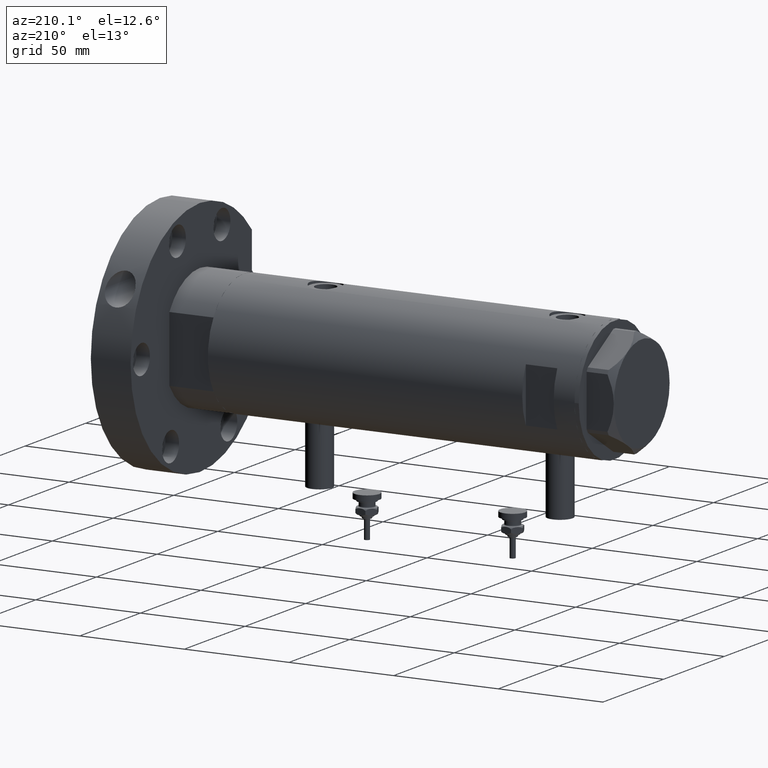
[diagram: clean part render]
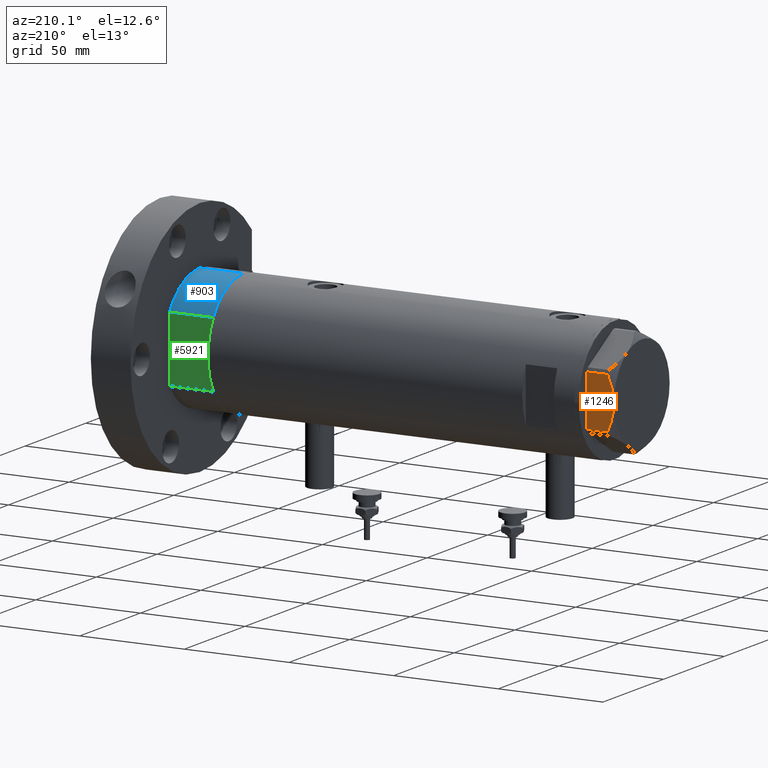
[diagram: same view with three faces highlighted in distinct colors, each labeled with its STEP entity id]
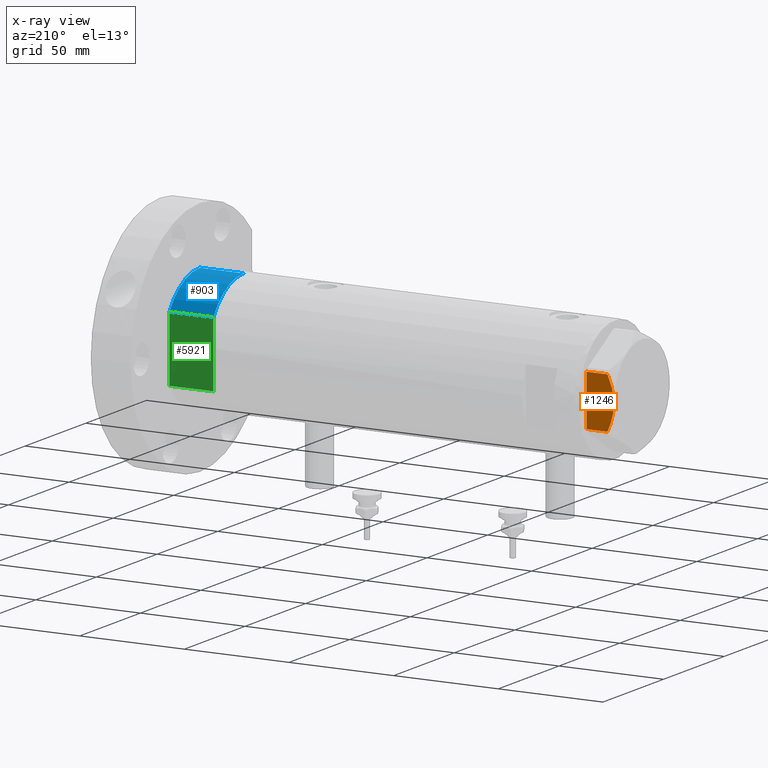
[diagram: x-ray of the same camera — body ghosted, the three highlighted faces saturated]
A machine part, auxiliary view with three faces highlighted in distinct colors.
The next image is the same camera in x-ray (body ghosted, the three faces saturated) — at least one of them is partly hidden behind the body in this view.
Their STEP definitions:

[orange] entity #1246 — the highlighted planar face has unit normal (0, -1, 0).
#116 = ORIENTED_EDGE ( 'NONE', *, *, #1996, .F. ) ;
#187 = DIRECTION ( 'NONE',  ( -1.032024811306395780E-14, 1.000000000000000000, 0.000000000000000000 ) ) ;
#456 = LINE ( 'NONE', #2821, #4517 ) ;
#588 = VECTOR ( 'NONE', #5077, 1000.000000000000000 ) ;
#646 = DIRECTION ( 'NONE',  ( -1.000000000000000000, -1.032024811306395780E-14, 0.000000000000000000 ) ) ;
#791 = CARTESIAN_POINT ( 'NONE',  ( 23.00000000000008527, -13.27905619136115867, 0.000000000000000000 ) ) ;
#855 = CARTESIAN_POINT ( 'NONE',  ( 22.99999999999985434, 9.734726261263476843, 11.02892470009566139 ) ) ;
#1056 = FACE_OUTER_BOUND ( 'NONE', #3800, .T. ) ;
#1188 = VECTOR ( 'NONE', #187, 1000.000000000000000 ) ;
#1246 = ADVANCED_FACE ( 'NONE', ( #1056 ), #6439, .F. ) ;
#1411 = CARTESIAN_POINT ( 'NONE',  ( 22.99999999999986500, 8.252113629125442884, 11.58164206268022056 ) ) ;
#1457 = CARTESIAN_POINT ( 'NONE',  ( 22.99999999999987210, 7.253003311474555126, 11.90327681034763430 ) ) ;
#1459 = VERTEX_POINT ( 'NONE', #6560 ) ;
#1648 = CARTESIAN_POINT ( 'NONE',  ( 22.99999999999984368, 11.20155944044835472, 10.42110268263274264 ) ) ;
#1764 = VERTEX_POINT ( 'NONE', #6193 ) ;
#1806 = EDGE_CURVE ( 'NONE', #1764, #4490, #7229, .T. ) ;
#1996 = EDGE_CURVE ( 'NONE', #6535, #1459, #7465, .T. ) ;
#2028 = EDGE_CURVE ( 'NONE', #4490, #1459, #6220, .T. ) ;
#2091 = CARTESIAN_POINT ( 'NONE',  ( 23.00000000000002132, -7.239756182922042704, 11.89218606342284978 ) ) ;
#2144 = CARTESIAN_POINT ( 'NONE',  ( 22.99999999999982947, 11.68282849742354301, 10.20637235269540888 ) ) ;
#2248 = DIRECTION ( 'NONE',  ( 0.000000000000000000, 0.000000000000000000, -1.000000000000000000 ) ) ;
#2514 = CARTESIAN_POINT ( 'NONE',  ( 22.99999999999994671, 0.5295934231899315225, 13.00000000000009770 ) ) ;
#2632 = AXIS2_PLACEMENT_3D ( 'NONE', #7552, #646, #5207 ) ;
#2681 = CARTESIAN_POINT ( 'NONE',  ( 22.99999999999982236, 12.15905619136166571, 0.000000000000000000 ) ) ;
#2711 = EDGE_CURVE ( 'NONE', #2863, #6535, #6890, .T. ) ;
#2746 = CARTESIAN_POINT ( 'NONE',  ( 23.00000000000006750, -11.20825071633899483, 10.42817330637845608 ) ) ;
#2821 = CARTESIAN_POINT ( 'NONE',  ( 23.00000000000007461, -12.15905619136117721, 13.00000000000000000 ) ) ;
#2863 = VERTEX_POINT ( 'NONE', #6432 ) ;
#3268 = CARTESIAN_POINT ( 'NONE',  ( 23.00000000000001421, -6.734330413511261604, 12.03938974125266448 ) ) ;
#3426 = CARTESIAN_POINT ( 'NONE',  ( 23.00000000000007461, -12.15905619136117544, 9.983800287807614637 ) ) ;
#3800 = EDGE_LOOP ( 'NONE', ( #6503, #7493, #7300, #7043, #116 ) ) ;
#3814 = CARTESIAN_POINT ( 'NONE',  ( 22.99999999999984723, 10.22738952213813590, 10.83247031367476687 ) ) ;
#4442 = CARTESIAN_POINT ( 'NONE',  ( 22.99999999999999289, -4.194757081058820170, 12.70300035152520479 ) ) ;
#4490 = VERTEX_POINT ( 'NONE', #2681 ) ;
#4491 = CARTESIAN_POINT ( 'NONE',  ( 22.99999999999982236, 12.15905619136166571, 13.00000000000000000 ) ) ;
#4517 = VECTOR ( 'NONE', #2248, 1000.000000000000000 ) ;
#5077 = DIRECTION ( 'NONE',  ( 0.000000000000000000, 0.000000000000000000, 1.000000000000000000 ) ) ;
#5127 = CARTESIAN_POINT ( 'NONE',  ( 23.00000000000003197, -8.246028007352199651, 11.57113180864690705 ) ) ;
#5184 = CARTESIAN_POINT ( 'NONE',  ( 22.99999999999982236, 12.15905619136166038, 9.983800287807609308 ) ) ;
#5207 = DIRECTION ( 'NONE',  ( 1.032024811306395780E-14, -1.000000000000000000, 0.000000000000000000 ) ) ;
#5291 = EDGE_CURVE ( 'NONE', #2863, #1764, #456, .T. ) ;
#5798 = CARTESIAN_POINT ( 'NONE',  ( 23.00000000000004263, -8.748091966971225375, 11.39681897828457124 ) ) ;
#6076 = CARTESIAN_POINT ( 'NONE',  ( 22.99999999999990763, 4.203926054642130872, 12.64168122312251263 ) ) ;
#6111 = CARTESIAN_POINT ( 'NONE',  ( 22.99999999999993960, 1.063773509315898647, 12.98143808360683060 ) ) ;
#6150 = CARTESIAN_POINT ( 'NONE',  ( 22.99999999999992184, 2.643615312305319875, 12.85430456063626714 ) ) ;
#6193 = CARTESIAN_POINT ( 'NONE',  ( 23.00000000000007461, -12.15905619136117721, 0.000000000000000000 ) ) ;
#6220 = LINE ( 'NONE', #4491, #588 ) ;
#6319 = CARTESIAN_POINT ( 'NONE',  ( 23.00000000000005684, -10.23890159976106240, 10.84081242829091529 ) ) ;
#6432 = CARTESIAN_POINT ( 'NONE',  ( 23.00000000000007461, -12.15905619136117544, 9.983800287807614637 ) ) ;
#6439 = PLANE ( 'NONE',  #2632 ) ;
#6503 = ORIENTED_EDGE ( 'NONE', *, *, #2711, .F. ) ;
#6535 = VERTEX_POINT ( 'NONE', #7070 ) ;
#6560 = CARTESIAN_POINT ( 'NONE',  ( 22.99999999999982236, 12.15905619136166038, 9.983800287807609308 ) ) ;
#6639 = CARTESIAN_POINT ( 'NONE',  ( 22.99999999999992539, 2.119709279062088836, 12.90853521217320043 ) ) ;
#6666 = CARTESIAN_POINT ( 'NONE',  ( 22.99999999999990052, 5.228918809624289565, 12.43333703384985256 ) ) ;
#6774 = CARTESIAN_POINT ( 'NONE',  ( 22.99999999999996447, -2.122900714017910584, 13.00000000000008882 ) ) ;
#6890 = B_SPLINE_CURVE_WITH_KNOTS ( 'NONE', 3,
 ( #3426, #2746, #6319, #5798, #5127, #2091, #3268, #4442, #6774, #7389 ),
 .UNSPECIFIED., .F., .F.,
 ( 4, 2, 2, 2, 4 ),
 ( 0.03516523594057416324, 0.03831677594541234994, 0.03989254594783143981, 0.04146831595025052969, 0.04777139595992689614 ),
 .UNSPECIFIED. ) ;
#7043 = ORIENTED_EDGE ( 'NONE', *, *, #2028, .T. ) ;
#7070 = CARTESIAN_POINT ( 'NONE',  ( 22.99999999999995026, 2.373657066004705010E-13, 13.00000000000000000 ) ) ;
#7229 = LINE ( 'NONE', #791, #1188 ) ;
#7294 = CARTESIAN_POINT ( 'NONE',  ( 22.99999999999995026, 2.373657066004705010E-13, 13.00000000000000000 ) ) ;
#7300 = ORIENTED_EDGE ( 'NONE', *, *, #1806, .T. ) ;
#7389 = CARTESIAN_POINT ( 'NONE',  ( 22.99999999999995026, 2.373657066004705010E-13, 13.00000000000000000 ) ) ;
#7465 = B_SPLINE_CURVE_WITH_KNOTS ( 'NONE', 3,
 ( #7294, #2514, #6111, #6639, #6150, #6076, #6666, #1457, #1411, #855, #3814, #1648, #2144, #5184 ),
 .UNSPECIFIED., .F., .F.,
 ( 4, 2, 2, 2, 2, 2, 4 ),
 ( 0.04777139595992689614, 0.04934380568070229761, 0.05091621540147769215, 0.05406103484302849510, 0.05720585428457929111, 0.05877826400535468565, 0.06035067372613008713 ),
 .UNSPECIFIED. ) ;
#7493 = ORIENTED_EDGE ( 'NONE', *, *, #5291, .T. ) ;
#7552 = CARTESIAN_POINT ( 'NONE',  ( 23.00000000000008527, -13.27905619136115867, 13.00000000000000000 ) ) ;

[blue] entity #903 — the highlighted cylindrical surface (partial cylindrical patch) has radius 29.5 mm, axis along (-1, -0, 0).
#3 = DIRECTION ( 'NONE',  ( 0.000000000000000000, 0.000000000000000000, 1.000000000000000000 ) ) ;
#344 = CIRCLE ( 'NONE', #5129, 29.50000000000000355 ) ;
#364 = VECTOR ( 'NONE', #3103, 1000.000000000000000 ) ;
#691 = CARTESIAN_POINT ( 'NONE',  ( 0.000000000000000000, 0.000000000000000000, 21.00000000000000000 ) ) ;
#705 = AXIS2_PLACEMENT_3D ( 'NONE', #691, #7560, #1733 ) ;
#903 = ADVANCED_FACE ( 'NONE', ( #6995 ), #5923, .T. ) ;
#966 = VECTOR ( 'NONE', #1713, 1000.000000000000000 ) ;
#1088 = CARTESIAN_POINT ( 'NONE',  ( -15.66045976336583401, 25.00000000000000000, 0.000000000000000000 ) ) ;
#1167 = CARTESIAN_POINT ( 'NONE',  ( 0.000000000000000000, 0.000000000000000000, 0.000000000000000000 ) ) ;
#1381 = VERTEX_POINT ( 'NONE', #5407 ) ;
#1500 = CARTESIAN_POINT ( 'NONE',  ( -29.50000000000000355, 0.000000000000000000, 0.000000000000000000 ) ) ;
#1713 = DIRECTION ( 'NONE',  ( -0.000000000000000000, -0.000000000000000000, 1.000000000000000000 ) ) ;
#1733 = DIRECTION ( 'NONE',  ( -1.000000000000000000, 0.000000000000000000, 0.000000000000000000 ) ) ;
#1762 = VERTEX_POINT ( 'NONE', #1500 ) ;
#1965 = CIRCLE ( 'NONE', #4785, 29.50000000000000355 ) ;
#2040 = VERTEX_POINT ( 'NONE', #4539 ) ;
#2129 = CARTESIAN_POINT ( 'NONE',  ( 0.000000000000000000, 0.000000000000000000, 21.00000000000000000 ) ) ;
#2586 = ORIENTED_EDGE ( 'NONE', *, *, #6866, .F. ) ;
#2769 = VERTEX_POINT ( 'NONE', #3899 ) ;
#3103 = DIRECTION ( 'NONE',  ( -0.000000000000000000, -0.000000000000000000, -1.000000000000000000 ) ) ;
#3131 = DIRECTION ( 'NONE',  ( 1.000000000000000000, 0.000000000000000000, 0.000000000000000000 ) ) ;
#3899 = CARTESIAN_POINT ( 'NONE',  ( -29.50000000000000355, 0.000000000000000000, 21.00000000000000000 ) ) ;
#4001 = ORIENTED_EDGE ( 'NONE', *, *, #7342, .T. ) ;
#4107 = EDGE_CURVE ( 'NONE', #2040, #2769, #344, .T. ) ;
#4539 = CARTESIAN_POINT ( 'NONE',  ( -15.66045976336583045, 24.99999999999999645, 21.00000000000000355 ) ) ;
#4588 = EDGE_CURVE ( 'NONE', #1381, #2040, #5122, .T. ) ;
#4785 = AXIS2_PLACEMENT_3D ( 'NONE', #1167, #3, #6933 ) ;
#4939 = LINE ( 'NONE', #5371, #364 ) ;
#5122 = LINE ( 'NONE', #1088, #966 ) ;
#5129 = AXIS2_PLACEMENT_3D ( 'NONE', #2129, #6779, #3131 ) ;
#5371 = CARTESIAN_POINT ( 'NONE',  ( -29.50000000000000355, 0.000000000000000000, 21.00000000000000000 ) ) ;
#5407 = CARTESIAN_POINT ( 'NONE',  ( -15.66045976336583401, 25.00000000000000000, 0.000000000000000000 ) ) ;
#5923 = CYLINDRICAL_SURFACE ( 'NONE', #705, 29.50000000000000355 ) ;
#6330 = ORIENTED_EDGE ( 'NONE', *, *, #4588, .F. ) ;
#6679 = EDGE_LOOP ( 'NONE', ( #2586, #6759, #6330, #4001 ) ) ;
#6759 = ORIENTED_EDGE ( 'NONE', *, *, #4107, .F. ) ;
#6779 = DIRECTION ( 'NONE',  ( 0.000000000000000000, 0.000000000000000000, 1.000000000000000000 ) ) ;
#6866 = EDGE_CURVE ( 'NONE', #2769, #1762, #4939, .T. ) ;
#6933 = DIRECTION ( 'NONE',  ( 1.000000000000000000, 0.000000000000000000, 0.000000000000000000 ) ) ;
#6995 = FACE_OUTER_BOUND ( 'NONE', #6679, .T. ) ;
#7342 = EDGE_CURVE ( 'NONE', #1381, #1762, #1965, .T. ) ;
#7560 = DIRECTION ( 'NONE',  ( -0.000000000000000000, -0.000000000000000000, -1.000000000000000000 ) ) ;

[green] entity #5921 — the highlighted planar face has unit normal (0, -1, -0).
#66 = DIRECTION ( 'NONE',  ( -0.000000000000000000, -0.000000000000000000, 1.000000000000000000 ) ) ;
#256 = VERTEX_POINT ( 'NONE', #6632 ) ;
#290 = PLANE ( 'NONE',  #4882 ) ;
#407 = ORIENTED_EDGE ( 'NONE', *, *, #2845, .T. ) ;
#521 = ORIENTED_EDGE ( 'NONE', *, *, #6678, .F. ) ;
#937 = ORIENTED_EDGE ( 'NONE', *, *, #6836, .F. ) ;
#962 = VECTOR ( 'NONE', #4228, 1000.000000000000000 ) ;
#966 = VECTOR ( 'NONE', #1713, 1000.000000000000000 ) ;
#1088 = CARTESIAN_POINT ( 'NONE',  ( -15.66045976336583401, 25.00000000000000000, 0.000000000000000000 ) ) ;
#1211 = LINE ( 'NONE', #5347, #4894 ) ;
#1269 = CARTESIAN_POINT ( 'NONE',  ( 7.141428428542853091, 25.00000000000000000, 0.000000000000000000 ) ) ;
#1381 = VERTEX_POINT ( 'NONE', #5407 ) ;
#1473 = DIRECTION ( 'NONE',  ( 0.000000000000000000, -0.000000000000000000, -1.000000000000000000 ) ) ;
#1541 = LINE ( 'NONE', #3969, #4013 ) ;
#1713 = DIRECTION ( 'NONE',  ( -0.000000000000000000, -0.000000000000000000, 1.000000000000000000 ) ) ;
#1747 = DIRECTION ( 'NONE',  ( 1.000000000000000000, 0.000000000000000000, 0.000000000000000000 ) ) ;
#1951 = EDGE_CURVE ( 'NONE', #2706, #4653, #3108, .T. ) ;
#2040 = VERTEX_POINT ( 'NONE', #4539 ) ;
#2046 = FACE_OUTER_BOUND ( 'NONE', #6880, .T. ) ;
#2206 = CARTESIAN_POINT ( 'NONE',  ( 15.66045976336582690, 25.00000000000000000, 0.000000000000000000 ) ) ;
#2578 = LINE ( 'NONE', #4370, #2788 ) ;
#2706 = VERTEX_POINT ( 'NONE', #3862 ) ;
#2760 = EDGE_CURVE ( 'NONE', #4653, #5509, #1541, .T. ) ;
#2788 = VECTOR ( 'NONE', #4305, 1000.000000000000000 ) ;
#2845 = EDGE_CURVE ( 'NONE', #2040, #256, #4673, .T. ) ;
#3108 = LINE ( 'NONE', #5450, #962 ) ;
#3671 = VECTOR ( 'NONE', #1747, 1000.000000000000000 ) ;
#3862 = CARTESIAN_POINT ( 'NONE',  ( -7.141428428542853091, 25.00000000000000000, 0.000000000000000000 ) ) ;
#3969 = CARTESIAN_POINT ( 'NONE',  ( -15.66045976336583401, 25.00000000000000000, 0.000000000000000000 ) ) ;
#4013 = VECTOR ( 'NONE', #5753, 1000.000000000000000 ) ;
#4053 = ORIENTED_EDGE ( 'NONE', *, *, #4588, .T. ) ;
#4217 = ORIENTED_EDGE ( 'NONE', *, *, #2760, .F. ) ;
#4228 = DIRECTION ( 'NONE',  ( 1.000000000000000000, 0.000000000000000000, 0.000000000000000000 ) ) ;
#4305 = DIRECTION ( 'NONE',  ( 1.000000000000000000, 0.000000000000000000, 0.000000000000000000 ) ) ;
#4370 = CARTESIAN_POINT ( 'NONE',  ( -15.66045976336583401, 25.00000000000000000, 0.000000000000000000 ) ) ;
#4539 = CARTESIAN_POINT ( 'NONE',  ( -15.66045976336583045, 24.99999999999999645, 21.00000000000000355 ) ) ;
#4588 = EDGE_CURVE ( 'NONE', #1381, #2040, #5122, .T. ) ;
#4653 = VERTEX_POINT ( 'NONE', #1269 ) ;
#4673 = LINE ( 'NONE', #7008, #3671 ) ;
#4882 = AXIS2_PLACEMENT_3D ( 'NONE', #6737, #5634, #1473 ) ;
#4894 = VECTOR ( 'NONE', #66, 1000.000000000000000 ) ;
#5122 = LINE ( 'NONE', #1088, #966 ) ;
#5178 = ORIENTED_EDGE ( 'NONE', *, *, #1951, .F. ) ;
#5347 = CARTESIAN_POINT ( 'NONE',  ( 15.66045976336583401, 25.00000000000000000, 0.000000000000000000 ) ) ;
#5407 = CARTESIAN_POINT ( 'NONE',  ( -15.66045976336583401, 25.00000000000000000, 0.000000000000000000 ) ) ;
#5450 = CARTESIAN_POINT ( 'NONE',  ( -15.66045976336583401, 25.00000000000000000, 0.000000000000000000 ) ) ;
#5509 = VERTEX_POINT ( 'NONE', #2206 ) ;
#5634 = DIRECTION ( 'NONE',  ( 0.000000000000000000, -1.000000000000000000, 0.000000000000000000 ) ) ;
#5753 = DIRECTION ( 'NONE',  ( 1.000000000000000000, 0.000000000000000000, 0.000000000000000000 ) ) ;
#5921 = ADVANCED_FACE ( 'NONE', ( #2046 ), #290, .F. ) ;
#6632 = CARTESIAN_POINT ( 'NONE',  ( 15.66045976336583045, 24.99999999999999645, 20.99999999999999645 ) ) ;
#6678 = EDGE_CURVE ( 'NONE', #5509, #256, #1211, .T. ) ;
#6737 = CARTESIAN_POINT ( 'NONE',  ( -15.66045976336583401, 25.00000000000000000, 0.000000000000000000 ) ) ;
#6836 = EDGE_CURVE ( 'NONE', #1381, #2706, #2578, .T. ) ;
#6880 = EDGE_LOOP ( 'NONE', ( #407, #521, #4217, #5178, #937, #4053 ) ) ;
#7008 = CARTESIAN_POINT ( 'NONE',  ( -15.66045976336583401, 25.00000000000000000, 21.00000000000000000 ) ) ;